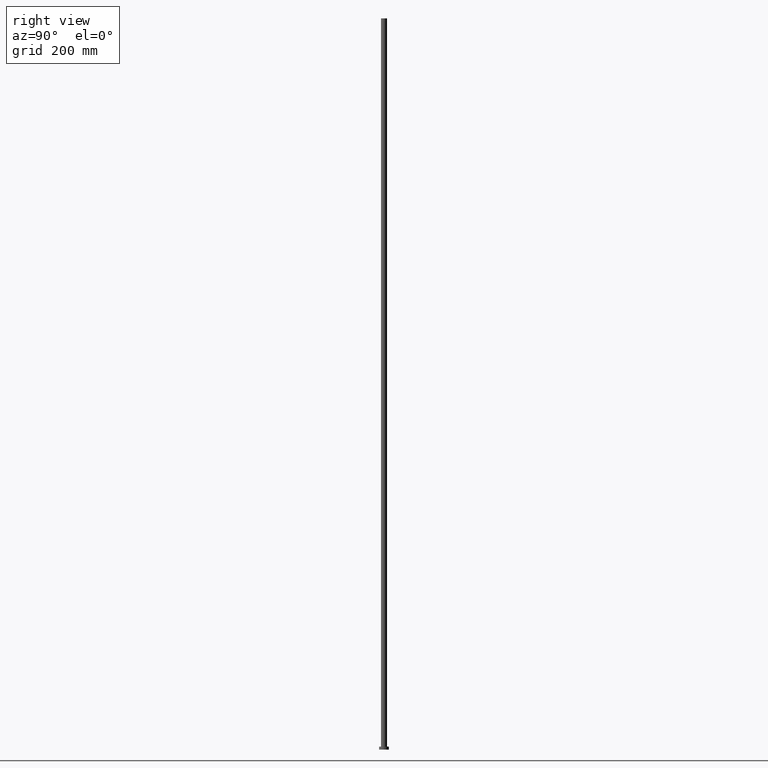
[diagram: clean part render]
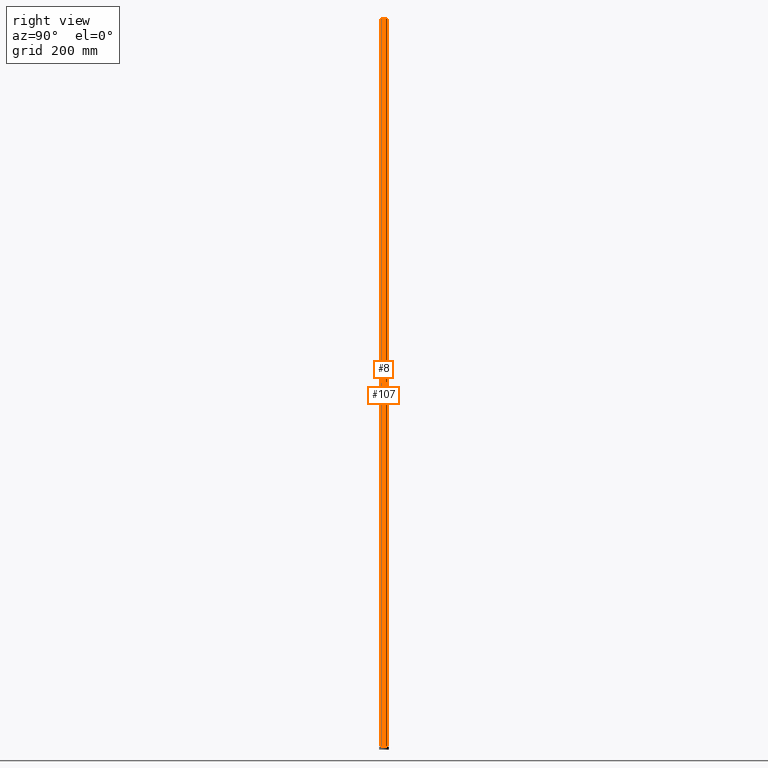
[diagram: same view with one multi-face feature highlighted, each face labeled with its STEP entity id]
A machine part, right view. The highlighted faces form ONE feature: a constant-radius fillet chain: 2 tangent blend faces with common blend radius 5 mm. The faces share edges in the B-rep.
Their STEP definitions:
[1] entity #107 (Cylinder):
#4 = VERTEX_POINT ( 'NONE', #176 ) ;
#14 = DIRECTION ( 'NONE',  ( -0.000000000000000000, -0.000000000000000000, -1.000000000000000000 ) ) ;
#19 = CARTESIAN_POINT ( 'NONE',  ( -5.000000000000000888, 0.000000000000000000, 1200.000000000000000 ) ) ;
#21 = VECTOR ( 'NONE', #14, 1000.000000000000000 ) ;
#24 = DIRECTION ( 'NONE',  ( 1.000000000000000000, 0.000000000000000000, 0.000000000000000000 ) ) ;
#28 = CARTESIAN_POINT ( 'NONE',  ( 0.000000000000000000, 0.000000000000000000, 1200.000000000000000 ) ) ;
#35 = EDGE_LOOP ( 'NONE', ( #42, #247, #138, #130 ) ) ;
#37 = DIRECTION ( 'NONE',  ( 1.000000000000000000, 0.000000000000000000, 0.000000000000000000 ) ) ;
#38 = LINE ( 'NONE', #19, #121 ) ;
#42 = ORIENTED_EDGE ( 'NONE', *, *, #151, .F. ) ;
#59 = DIRECTION ( 'NONE',  ( 0.000000000000000000, 0.000000000000000000, 1.000000000000000000 ) ) ;
#75 = DIRECTION ( 'NONE',  ( -0.000000000000000000, -0.000000000000000000, -1.000000000000000000 ) ) ;
#81 = CARTESIAN_POINT ( 'NONE',  ( 0.000000000000000000, 0.000000000000000000, 5.000000000000000000 ) ) ;
#89 = FACE_OUTER_BOUND ( 'NONE', #35, .T. ) ;
#98 = VERTEX_POINT ( 'NONE', #109 ) ;
#107 = ADVANCED_FACE ( 'NONE', ( #89 ), #172, .T. ) ;
#109 = CARTESIAN_POINT ( 'NONE',  ( -5.000000000000000888, 0.000000000000000000, 1200.000000000000000 ) ) ;
#112 = DIRECTION ( 'NONE',  ( -0.000000000000000000, -0.000000000000000000, -1.000000000000000000 ) ) ;
#113 = CIRCLE ( 'NONE', #250, 5.000000000000000888 ) ;
#119 = EDGE_CURVE ( 'NONE', #4, #160, #148, .T. ) ;
#121 = VECTOR ( 'NONE', #75, 1000.000000000000000 ) ;
#130 = ORIENTED_EDGE ( 'NONE', *, *, #253, .F. ) ;
#138 = ORIENTED_EDGE ( 'NONE', *, *, #167, .T. ) ;
#141 = AXIS2_PLACEMENT_3D ( 'NONE', #28, #112, #195 ) ;
#148 = LINE ( 'NONE', #245, #21 ) ;
#151 = EDGE_CURVE ( 'NONE', #4, #98, #180, .T. ) ;
#160 = VERTEX_POINT ( 'NONE', #215 ) ;
#167 = EDGE_CURVE ( 'NONE', #160, #246, #113, .T. ) ;
#171 = CARTESIAN_POINT ( 'NONE',  ( -5.000000000000000888, 0.000000000000000000, 5.000000000000000000 ) ) ;
#172 = CYLINDRICAL_SURFACE ( 'NONE', #141, 5.000000000000000888 ) ;
#176 = CARTESIAN_POINT ( 'NONE',  ( 5.000000000000000888, 6.123233995736767268E-16, 1200.000000000000000 ) ) ;
#180 = CIRCLE ( 'NONE', #205, 5.000000000000000888 ) ;
#195 = DIRECTION ( 'NONE',  ( -1.000000000000000000, 0.000000000000000000, 0.000000000000000000 ) ) ;
#205 = AXIS2_PLACEMENT_3D ( 'NONE', #241, #59, #37 ) ;
#215 = CARTESIAN_POINT ( 'NONE',  ( 5.000000000000000888, 6.123233995736767268E-16, 5.000000000000000000 ) ) ;
#234 = DIRECTION ( 'NONE',  ( 0.000000000000000000, 0.000000000000000000, 1.000000000000000000 ) ) ;
#241 = CARTESIAN_POINT ( 'NONE',  ( 0.000000000000000000, 0.000000000000000000, 1200.000000000000000 ) ) ;
#245 = CARTESIAN_POINT ( 'NONE',  ( 5.000000000000000888, 6.123233995736767268E-16, 1200.000000000000000 ) ) ;
#246 = VERTEX_POINT ( 'NONE', #171 ) ;
#247 = ORIENTED_EDGE ( 'NONE', *, *, #119, .T. ) ;
#250 = AXIS2_PLACEMENT_3D ( 'NONE', #81, #234, #24 ) ;
#253 = EDGE_CURVE ( 'NONE', #98, #246, #38, .T. ) ;
[2] entity #8 (Cylinder):
#1 = FACE_OUTER_BOUND ( 'NONE', #224, .T. ) ;
#4 = VERTEX_POINT ( 'NONE', #176 ) ;
#8 = ADVANCED_FACE ( 'NONE', ( #1 ), #153, .T. ) ;
#14 = DIRECTION ( 'NONE',  ( -0.000000000000000000, -0.000000000000000000, -1.000000000000000000 ) ) ;
#19 = CARTESIAN_POINT ( 'NONE',  ( -5.000000000000000888, 0.000000000000000000, 1200.000000000000000 ) ) ;
#21 = VECTOR ( 'NONE', #14, 1000.000000000000000 ) ;
#34 = CIRCLE ( 'NONE', #131, 5.000000000000000888 ) ;
#38 = LINE ( 'NONE', #19, #121 ) ;
#44 = AXIS2_PLACEMENT_3D ( 'NONE', #174, #240, #129 ) ;
#45 = EDGE_CURVE ( 'NONE', #246, #160, #34, .T. ) ;
#60 = ORIENTED_EDGE ( 'NONE', *, *, #45, .T. ) ;
#67 = CARTESIAN_POINT ( 'NONE',  ( 0.000000000000000000, 0.000000000000000000, 5.000000000000000000 ) ) ;
#75 = DIRECTION ( 'NONE',  ( -0.000000000000000000, -0.000000000000000000, -1.000000000000000000 ) ) ;
#90 = EDGE_CURVE ( 'NONE', #98, #4, #228, .T. ) ;
#93 = AXIS2_PLACEMENT_3D ( 'NONE', #236, #213, #235 ) ;
#98 = VERTEX_POINT ( 'NONE', #109 ) ;
#109 = CARTESIAN_POINT ( 'NONE',  ( -5.000000000000000888, 0.000000000000000000, 1200.000000000000000 ) ) ;
#118 = ORIENTED_EDGE ( 'NONE', *, *, #119, .F. ) ;
#119 = EDGE_CURVE ( 'NONE', #4, #160, #148, .T. ) ;
#121 = VECTOR ( 'NONE', #75, 1000.000000000000000 ) ;
#129 = DIRECTION ( 'NONE',  ( -1.000000000000000000, 0.000000000000000000, 0.000000000000000000 ) ) ;
#131 = AXIS2_PLACEMENT_3D ( 'NONE', #67, #214, #237 ) ;
#148 = LINE ( 'NONE', #245, #21 ) ;
#153 = CYLINDRICAL_SURFACE ( 'NONE', #44, 5.000000000000000888 ) ;
#160 = VERTEX_POINT ( 'NONE', #215 ) ;
#171 = CARTESIAN_POINT ( 'NONE',  ( -5.000000000000000888, 0.000000000000000000, 5.000000000000000000 ) ) ;
#174 = CARTESIAN_POINT ( 'NONE',  ( 0.000000000000000000, 0.000000000000000000, 1200.000000000000000 ) ) ;
#176 = CARTESIAN_POINT ( 'NONE',  ( 5.000000000000000888, 6.123233995736767268E-16, 1200.000000000000000 ) ) ;
#181 = ORIENTED_EDGE ( 'NONE', *, *, #253, .T. ) ;
#213 = DIRECTION ( 'NONE',  ( 0.000000000000000000, 0.000000000000000000, 1.000000000000000000 ) ) ;
#214 = DIRECTION ( 'NONE',  ( 0.000000000000000000, 0.000000000000000000, 1.000000000000000000 ) ) ;
#215 = CARTESIAN_POINT ( 'NONE',  ( 5.000000000000000888, 6.123233995736767268E-16, 5.000000000000000000 ) ) ;
#221 = ORIENTED_EDGE ( 'NONE', *, *, #90, .F. ) ;
#224 = EDGE_LOOP ( 'NONE', ( #118, #221, #181, #60 ) ) ;
#228 = CIRCLE ( 'NONE', #93, 5.000000000000000888 ) ;
#235 = DIRECTION ( 'NONE',  ( 1.000000000000000000, 0.000000000000000000, 0.000000000000000000 ) ) ;
#236 = CARTESIAN_POINT ( 'NONE',  ( 0.000000000000000000, 0.000000000000000000, 1200.000000000000000 ) ) ;
#237 = DIRECTION ( 'NONE',  ( 1.000000000000000000, 0.000000000000000000, 0.000000000000000000 ) ) ;
#240 = DIRECTION ( 'NONE',  ( -0.000000000000000000, -0.000000000000000000, -1.000000000000000000 ) ) ;
#245 = CARTESIAN_POINT ( 'NONE',  ( 5.000000000000000888, 6.123233995736767268E-16, 1200.000000000000000 ) ) ;
#246 = VERTEX_POINT ( 'NONE', #171 ) ;
#253 = EDGE_CURVE ( 'NONE', #98, #246, #38, .T. ) ;